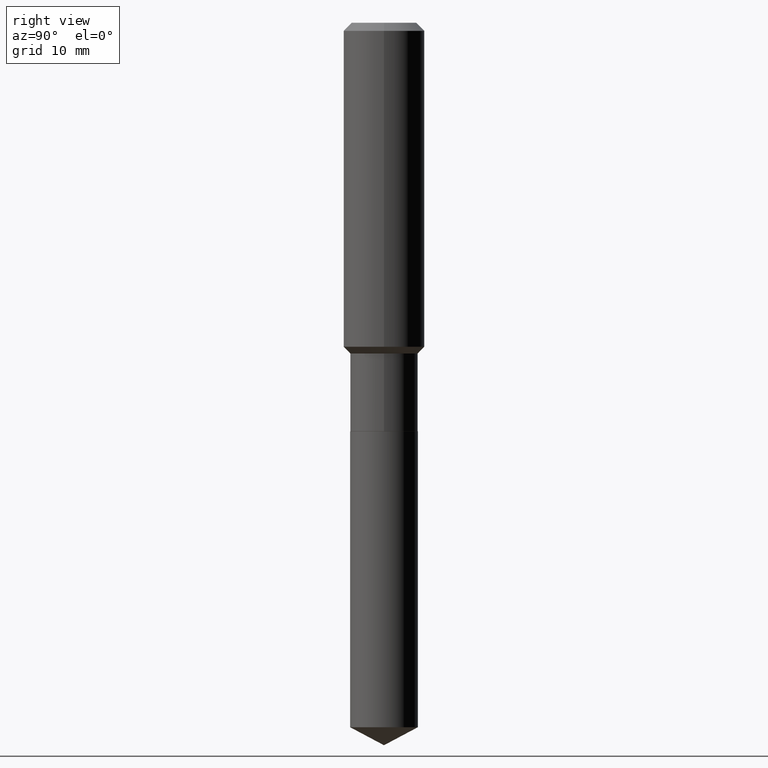
[diagram: clean part render]
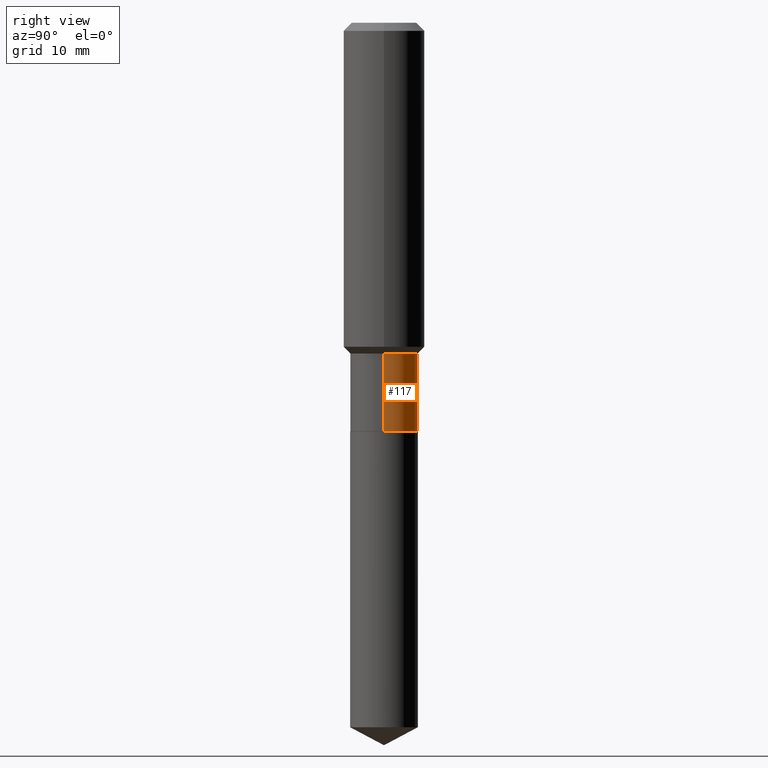
[diagram: same view with one face highlighted and labeled with its STEP entity id]
A machine part, right view. The second image highlights one B-rep face of the part: STEP entity #117.
In plain terms, the highlighted cylindrical surface (edge-blend (fillet) strip) has radius 4.1669 mm, axis along (-0, 0, 1).
Its self-contained STEP definition (entity closure, byte-faithful):
#23 = AXIS2_PLACEMENT_3D ( 'NONE', #171, #394, #199 ) ;
#46 = VECTOR ( 'NONE', #193, 39.37007874015748143 ) ;
#69 = DIRECTION ( 'NONE',  ( -2.445468806185136597E-29, 3.491481338843145583E-15, 1.000000000000000000 ) ) ;
#79 = VERTEX_POINT ( 'NONE', #287 ) ;
#87 = ORIENTED_EDGE ( 'NONE', *, *, #470, .T. ) ;
#90 = AXIS2_PLACEMENT_3D ( 'NONE', #187, #69, #486 ) ;
#117 = ADVANCED_FACE ( 'NONE', ( #293 ), #217, .T. ) ;
#130 = CARTESIAN_POINT ( 'NONE',  ( 0.1640499999999999459, -6.746938539180489683E-15, -1.604299999999999837 ) ) ;
#153 = VERTEX_POINT ( 'NONE', #444 ) ;
#159 = ORIENTED_EDGE ( 'NONE', *, *, #414, .F. ) ;
#163 = CARTESIAN_POINT ( 'NONE',  ( 4.844718251933373369E-29, -6.916973680382155175E-15, -1.981099999999999861 ) ) ;
#171 = CARTESIAN_POINT ( 'NONE',  ( 3.923265605762814630E-29, -5.601383511906058021E-15, -1.604299999999999837 ) ) ;
#187 = CARTESIAN_POINT ( 'NONE',  ( 0.000000000000000000, 0.000000000000000000, 0.000000000000000000 ) ) ;
#193 = DIRECTION ( 'NONE',  ( -2.445468806185136877E-29, 3.491481338843145188E-15, 1.000000000000000000 ) ) ;
#197 = VECTOR ( 'NONE', #426, 39.37007874015748143 ) ;
#199 = DIRECTION ( 'NONE',  ( 1.000000000000000000, -6.982962677686266711E-15, 0.000000000000000000 ) ) ;
#202 = EDGE_CURVE ( 'NONE', #79, #466, #365, .T. ) ;
#208 = LINE ( 'NONE', #462, #197 ) ;
#217 = CYLINDRICAL_SURFACE ( 'NONE', #90, 0.1640500000000000014 ) ;
#268 = ORIENTED_EDGE ( 'NONE', *, *, #202, .F. ) ;
#271 = AXIS2_PLACEMENT_3D ( 'NONE', #163, #315, #468 ) ;
#287 = CARTESIAN_POINT ( 'NONE',  ( 0.1640500000000000291, -8.062528707656587626E-15, -1.981099999999999861 ) ) ;
#293 = FACE_OUTER_BOUND ( 'NONE', #437, .T. ) ;
#294 = CARTESIAN_POINT ( 'NONE',  ( 0.1640500000000000014, -1.145555027274432057E-15, 7.999368000693231542E-30 ) ) ;
#315 = DIRECTION ( 'NONE',  ( -2.445468806185136597E-29, 3.491481338843145583E-15, 1.000000000000000000 ) ) ;
#319 = ORIENTED_EDGE ( 'NONE', *, *, #432, .T. ) ;
#359 = CARTESIAN_POINT ( 'NONE',  ( -0.1640499999999999459, -5.093533238129662036E-15, -1.604299999999999837 ) ) ;
#365 = LINE ( 'NONE', #294, #46 ) ;
#394 = DIRECTION ( 'NONE',  ( -2.445468806185136597E-29, 3.491481338843145583E-15, 1.000000000000000000 ) ) ;
#414 = EDGE_CURVE ( 'NONE', #466, #469, #467, .T. ) ;
#426 = DIRECTION ( 'NONE',  ( -2.445468806185136877E-29, 3.491481338843145188E-15, 1.000000000000000000 ) ) ;
#432 = EDGE_CURVE ( 'NONE', #79, #153, #460, .T. ) ;
#437 = EDGE_LOOP ( 'NONE', ( #319, #87, #159, #268 ) ) ;
#444 = CARTESIAN_POINT ( 'NONE',  ( -0.1640500000000000291, -5.093533238129662036E-15, -1.981099999999999861 ) ) ;
#460 = CIRCLE ( 'NONE', #271, 0.1640500000000000291 ) ;
#462 = CARTESIAN_POINT ( 'NONE',  ( -0.1640500000000000014, 1.165645358014444365E-15, -8.069513015563172164E-30 ) ) ;
#466 = VERTEX_POINT ( 'NONE', #130 ) ;
#467 = CIRCLE ( 'NONE', #23, 0.1640499999999999459 ) ;
#468 = DIRECTION ( 'NONE',  ( 1.000000000000000000, -6.982962677686269077E-15, 0.000000000000000000 ) ) ;
#469 = VERTEX_POINT ( 'NONE', #359 ) ;
#470 = EDGE_CURVE ( 'NONE', #153, #469, #208, .T. ) ;
#486 = DIRECTION ( 'NONE',  ( 1.000000000000000000, -6.982962677686266711E-15, 4.876176775795935232E-29 ) ) ;